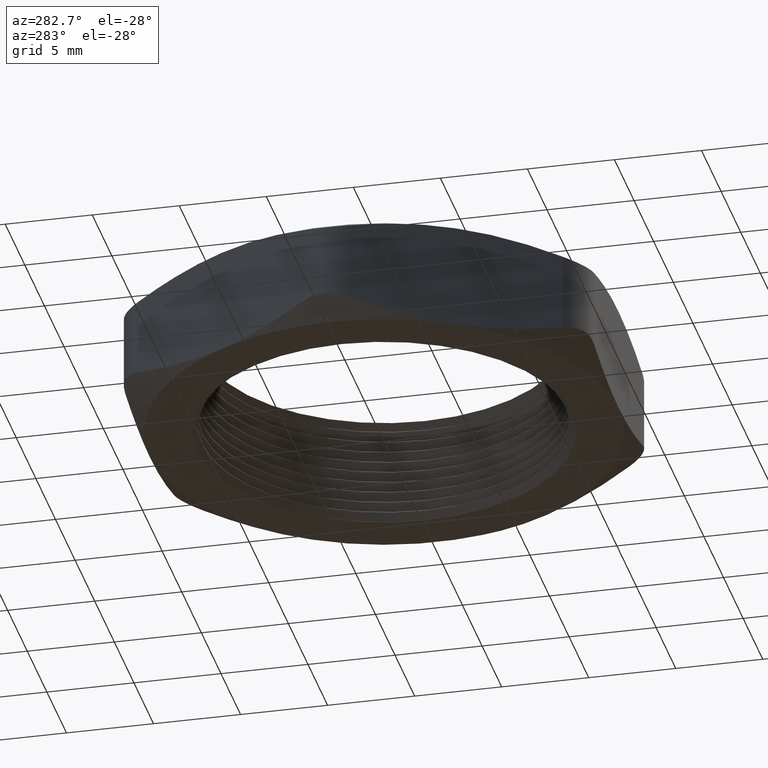
[diagram: clean part render]
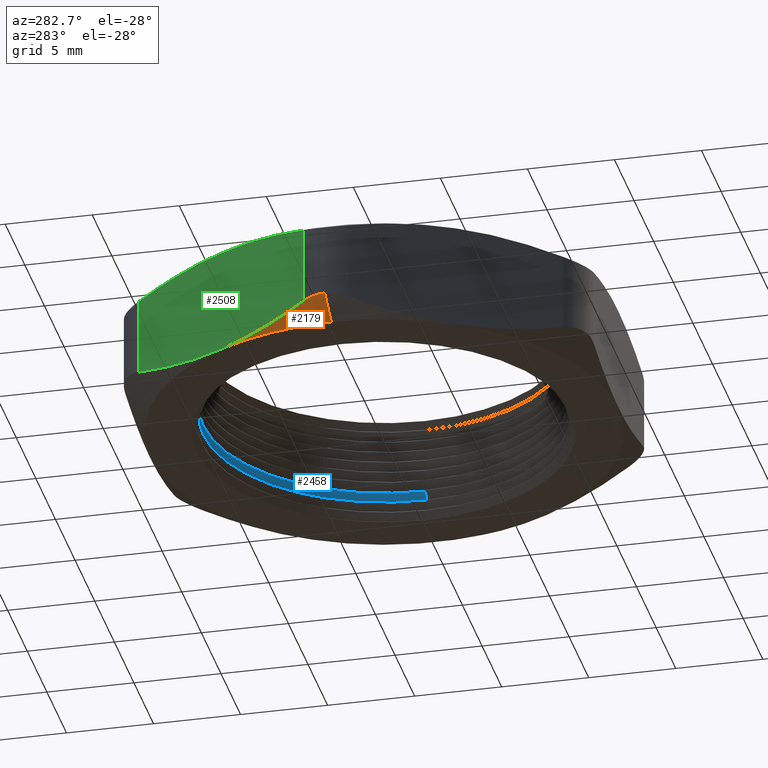
[diagram: same view with three faces highlighted in distinct colors, each labeled with its STEP entity id]
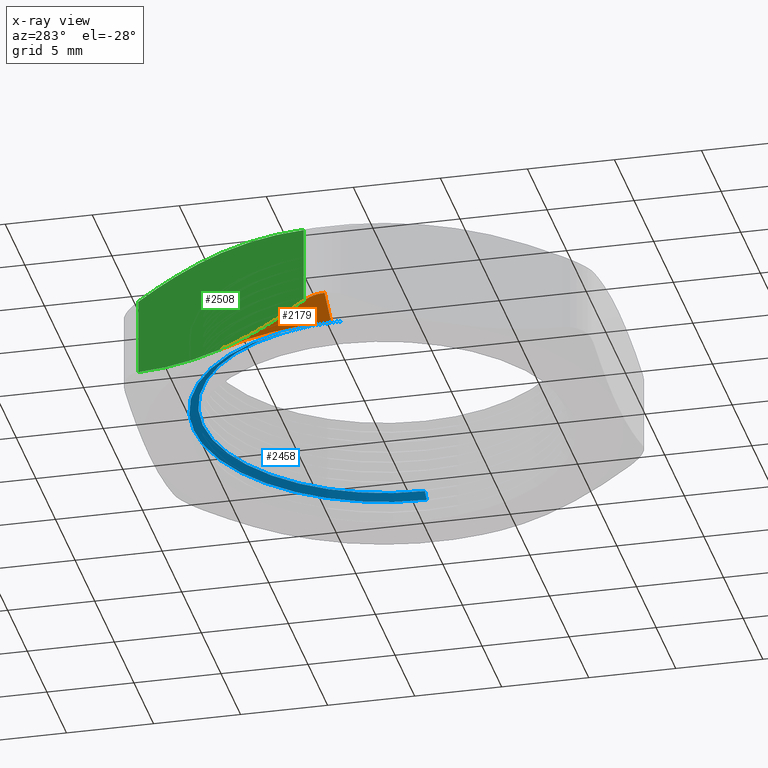
[diagram: x-ray of the same camera — body ghosted, the three highlighted faces saturated]
A machine part, auxiliary view with three faces highlighted in distinct colors.
The next image is the same camera in x-ray (body ghosted, the three faces saturated) — at least one of them is partly hidden behind the body in this view.
Their STEP definitions:

[orange] entity #2179 — the highlighted conical surface has half-angle 60 deg.
#16 = EDGE_CURVE ( 'NONE', #17, #18, #2376, .T. ) ;
#17 = VERTEX_POINT ( 'NONE', #2375 ) ;
#18 = VERTEX_POINT ( 'NONE', #2380 ) ;
#19 = VERTEX_POINT ( 'NONE', #2377 ) ;
#27 = VERTEX_POINT ( 'NONE', #296 ) ;
#296 = CARTESIAN_POINT ( 'NONE',  ( -0.5831237718815222000, 0.05000000000000003100, 0.03190638126214317300 ) ) ;
#1289 = DIRECTION ( 'NONE',  ( -1.000000000000000000, 0.0000000000000000000, 0.0000000000000000000 ) ) ;
#1290 = DIRECTION ( 'NONE',  ( 0.0000000000000000000, 0.0000000000000000000, 1.000000000000000000 ) ) ;
#1291 = CARTESIAN_POINT ( 'NONE',  ( 0.0000000000000000000, 0.0000000000000000000, 0.0000000000000000000 ) ) ;
#1292 = AXIS2_PLACEMENT_3D ( 'NONE', #1291, #1290, #1289 ) ;
#1293 = CONICAL_SURFACE ( 'NONE', #1292, 0.5300000000000002500, 1.047197551196600100 ) ;
#1296 = FACE_OUTER_BOUND ( 'NONE', #2182, .T. ) ;
#1335 = DIRECTION ( 'NONE',  ( -0.8660254037844397100, 0.0000000000000000000, 0.4999999999999979500 ) ) ;
#1336 = VECTOR ( 'NONE', #1335, 39.37007874015748900 ) ;
#1337 = CARTESIAN_POINT ( 'NONE',  ( -0.5300000000000002500, 0.0000000000000000000, 0.0000000000000000000 ) ) ;
#1338 = LINE ( 'NONE', #1337, #1336 ) ;
#1362 = CARTESIAN_POINT ( 'NONE',  ( -0.5831237718815222000, 0.05000000000000003100, 0.03190638126214317300 ) ) ;
#1363 = CARTESIAN_POINT ( 'NONE',  ( -0.5874339482388029100, 0.04253455555960868100, 0.03401753964666053000 ) ) ;
#1364 = CARTESIAN_POINT ( 'NONE',  ( -0.5908131712624055100, 0.03441686282104221300, 0.03565369559001656300 ) ) ;
#1365 = CARTESIAN_POINT ( 'NONE',  ( -0.5953360325567611500, 0.01763874833257972300, 0.03783774930936032600 ) ) ;
#1366 = CARTESIAN_POINT ( 'NONE',  ( -0.5965212315030782300, 0.008765464616512111000, 0.03840605091512740200 ) ) ;
#1367 = CARTESIAN_POINT ( 'NONE',  ( -0.5965212315030784500, -3.403670817143060400E-025, 0.03840605091512739500 ) ) ;
#1371 = B_SPLINE_CURVE_WITH_KNOTS ( 'NONE', 3,
 ( #1367, #1366, #1365, #1364, #1363, #1362 ),
 .UNSPECIFIED., .F., .F.,
 ( 4, 2, 4 ),
 ( 0.001338114895954698700, 0.002005113312624132500, 0.002672111729293566500 ),
 .UNSPECIFIED. ) ;
#1381 = CARTESIAN_POINT ( 'NONE',  ( -0.4589934640057526900, 0.2650000000000001800, 0.0000000000000000000 ) ) ;
#1382 = CARTESIAN_POINT ( 'NONE',  ( -0.4800637827398058200, 0.2285051374209496100, -3.461496847440801800E-016 ) ) ;
#1383 = CARTESIAN_POINT ( 'NONE',  ( -0.5009233622360697000, 0.1923752859088982400, 0.002934156563239794500 ) ) ;
#1384 = CARTESIAN_POINT ( 'NONE',  ( -0.5422754926343552600, 0.1207512950578549200, 0.01391266829341693800 ) ) ;
#1385 = CARTESIAN_POINT ( 'NONE',  ( -0.5627695032311009800, 0.08525462745343617700, 0.02193669989412413600 ) ) ;
#1386 = CARTESIAN_POINT ( 'NONE',  ( -0.5831237718815222000, 0.05000000000000003100, 0.03190638126214317300 ) ) ;
#1389 = B_SPLINE_CURVE_WITH_KNOTS ( 'NONE', 3,
 ( #1386, #1385, #1384, #1383, #1382, #1381 ),
 .UNSPECIFIED., .F., .F.,
 ( 4, 2, 4 ),
 ( 0.001507538927942149400, 0.004686030383342452300, 0.007864521838742756900 ),
 .UNSPECIFIED. ) ;
#2165 = ORIENTED_EDGE ( 'NONE', *, *, #2211, .T. ) ;
#2179 = ADVANCED_FACE ( 'NONE', ( #1296 ), #1293, .T. ) ;
#2181 = ORIENTED_EDGE ( 'NONE', *, *, #2183, .T. ) ;
#2182 = EDGE_LOOP ( 'NONE', ( #2188, #2181, #2190, #2165 ) ) ;
#2183 = EDGE_CURVE ( 'NONE', #18, #19, #1338, .T. ) ;
#2188 = ORIENTED_EDGE ( 'NONE', *, *, #16, .T. ) ;
#2189 = EDGE_CURVE ( 'NONE', #19, #27, #1371, .T. ) ;
#2190 = ORIENTED_EDGE ( 'NONE', *, *, #2189, .T. ) ;
#2211 = EDGE_CURVE ( 'NONE', #27, #17, #1389, .T. ) ;
#2375 = CARTESIAN_POINT ( 'NONE',  ( -0.4589934640057526900, 0.2650000000000001800, 0.0000000000000000000 ) ) ;
#2376 = CIRCLE ( 'NONE', #2379, 0.5300000000000002500 ) ;
#2377 = CARTESIAN_POINT ( 'NONE',  ( -0.5965212315030784500, -3.403670817143060400E-025, 0.03840605091512739500 ) ) ;
#2378 = CARTESIAN_POINT ( 'NONE',  ( 0.0000000000000000000, 0.0000000000000000000, 0.0000000000000000000 ) ) ;
#2379 = AXIS2_PLACEMENT_3D ( 'NONE', #2378, #2382, #2381 ) ;
#2380 = CARTESIAN_POINT ( 'NONE',  ( -0.5300000000000002500, 0.0000000000000000000, 0.0000000000000000000 ) ) ;
#2381 = DIRECTION ( 'NONE',  ( 1.000000000000000000, 0.0000000000000000000, 0.0000000000000000000 ) ) ;
#2382 = DIRECTION ( 'NONE',  ( 0.0000000000000000000, 0.0000000000000000000, 1.000000000000000000 ) ) ;

[blue] entity #2458 — the highlighted conical surface has half-angle 60 deg.
#208 = EDGE_CURVE ( 'NONE', #579, #576, #674, .T. ) ;
#217 = ORIENTED_EDGE ( 'NONE', *, *, #208, .F. ) ;
#218 = ORIENTED_EDGE ( 'NONE', *, *, #1613, .T. ) ;
#261 = EDGE_LOOP ( 'NONE', ( #2454, #2457, #218, #217 ) ) ;
#576 = VERTEX_POINT ( 'NONE', #930 ) ;
#579 = VERTEX_POINT ( 'NONE', #924 ) ;
#596 = VERTEX_POINT ( 'NONE', #954 ) ;
#671 = DIRECTION ( 'NONE',  ( 1.000000000000000000, 0.0000000000000000000, 0.0000000000000000000 ) ) ;
#672 = DIRECTION ( 'NONE',  ( 0.0000000000000000000, 0.0000000000000000000, 1.000000000000000000 ) ) ;
#673 = AXIS2_PLACEMENT_3D ( 'NONE', #678, #672, #671 ) ;
#674 = CIRCLE ( 'NONE', #673, 0.4299999999999999900 ) ;
#678 = CARTESIAN_POINT ( 'NONE',  ( 0.0000000000000000000, 0.0000000000000000000, 0.05345299461620774100 ) ) ;
#924 = CARTESIAN_POINT ( 'NONE',  ( 0.4299999999999999900, 5.265981236333618200E-017, 0.05345299461620774100 ) ) ;
#930 = CARTESIAN_POINT ( 'NONE',  ( -0.4299999999999999900, 0.0000000000000000000, 0.05345299461620774100 ) ) ;
#954 = CARTESIAN_POINT ( 'NONE',  ( -0.4099999999999999800, 0.0000000000000000000, 0.06499999999999998800 ) ) ;
#1043 = DIRECTION ( 'NONE',  ( -0.8660254037844434800, 0.0000000000000000000, -0.4999999999999913400 ) ) ;
#1044 = VECTOR ( 'NONE', #1043, 39.37007874015748900 ) ;
#1045 = CARTESIAN_POINT ( 'NONE',  ( -0.4299999999999999900, 0.0000000000000000000, 0.05345299461620774100 ) ) ;
#1046 = LINE ( 'NONE', #1045, #1044 ) ;
#1094 = CARTESIAN_POINT ( 'NONE',  ( 0.4099999999999999800, 5.021051876504146900E-017, 0.06499999999999998800 ) ) ;
#1177 = DIRECTION ( 'NONE',  ( 0.8660254037844434800, 1.060575238724912700E-016, -0.4999999999999913400 ) ) ;
#1178 = VECTOR ( 'NONE', #1177, 39.37007874015748900 ) ;
#1179 = CARTESIAN_POINT ( 'NONE',  ( 0.4299999999999999900, 5.265981236333618200E-017, 0.05345299461620774100 ) ) ;
#1180 = LINE ( 'NONE', #1179, #1178 ) ;
#1459 = DIRECTION ( 'NONE',  ( 1.000000000000000000, 0.0000000000000000000, 0.0000000000000000000 ) ) ;
#1460 = DIRECTION ( 'NONE',  ( 0.0000000000000000000, 0.0000000000000000000, 1.000000000000000000 ) ) ;
#1461 = AXIS2_PLACEMENT_3D ( 'NONE', #1467, #1460, #1459 ) ;
#1462 = CIRCLE ( 'NONE', #1461, 0.4099999999999999800 ) ;
#1467 = CARTESIAN_POINT ( 'NONE',  ( 0.0000000000000000000, 0.0000000000000000000, 0.06499999999999998800 ) ) ;
#1613 = EDGE_CURVE ( 'NONE', #596, #576, #1046, .T. ) ;
#1616 = VERTEX_POINT ( 'NONE', #1094 ) ;
#1776 = CONICAL_SURFACE ( 'NONE', #1777, 0.4299999999999999900, 1.047197551196607600 ) ;
#1777 = AXIS2_PLACEMENT_3D ( 'NONE', #1783, #1838, #1837 ) ;
#1778 = FACE_OUTER_BOUND ( 'NONE', #261, .T. ) ;
#1783 = CARTESIAN_POINT ( 'NONE',  ( 0.0000000000000000000, 0.0000000000000000000, 0.05345299461620774100 ) ) ;
#1837 = DIRECTION ( 'NONE',  ( -1.000000000000000000, 0.0000000000000000000, 0.0000000000000000000 ) ) ;
#1838 = DIRECTION ( 'NONE',  ( 0.0000000000000000000, 0.0000000000000000000, -1.000000000000000000 ) ) ;
#2107 = EDGE_CURVE ( 'NONE', #1616, #579, #1180, .T. ) ;
#2262 = EDGE_CURVE ( 'NONE', #1616, #596, #1462, .T. ) ;
#2454 = ORIENTED_EDGE ( 'NONE', *, *, #2107, .F. ) ;
#2457 = ORIENTED_EDGE ( 'NONE', *, *, #2262, .T. ) ;
#2458 = ADVANCED_FACE ( 'NONE', ( #1778 ), #1776, .F. ) ;

[green] entity #2508 — the highlighted planar face has unit normal (0.866, -0.5, 0).
#17 = VERTEX_POINT ( 'NONE', #2375 ) ;
#27 = VERTEX_POINT ( 'NONE', #296 ) ;
#296 = CARTESIAN_POINT ( 'NONE',  ( -0.5831237718815222000, 0.05000000000000003100, 0.03190638126214317300 ) ) ;
#1381 = CARTESIAN_POINT ( 'NONE',  ( -0.4589934640057526900, 0.2650000000000001800, 0.0000000000000000000 ) ) ;
#1382 = CARTESIAN_POINT ( 'NONE',  ( -0.4800637827398058200, 0.2285051374209496100, -3.461496847440801800E-016 ) ) ;
#1383 = CARTESIAN_POINT ( 'NONE',  ( -0.5009233622360697000, 0.1923752859088982400, 0.002934156563239794500 ) ) ;
#1384 = CARTESIAN_POINT ( 'NONE',  ( -0.5422754926343552600, 0.1207512950578549200, 0.01391266829341693800 ) ) ;
#1385 = CARTESIAN_POINT ( 'NONE',  ( -0.5627695032311009800, 0.08525462745343617700, 0.02193669989412413600 ) ) ;
#1386 = CARTESIAN_POINT ( 'NONE',  ( -0.5831237718815222000, 0.05000000000000003100, 0.03190638126214317300 ) ) ;
#1389 = B_SPLINE_CURVE_WITH_KNOTS ( 'NONE', 3,
 ( #1386, #1385, #1384, #1383, #1382, #1381 ),
 .UNSPECIFIED., .F., .F.,
 ( 4, 2, 4 ),
 ( 0.001507538927942149400, 0.004686030383342452300, 0.007864521838742756900 ),
 .UNSPECIFIED. ) ;
#1491 = CARTESIAN_POINT ( 'NONE',  ( -0.3552174247804042500, 0.4447453725465638800, 0.2180633001058758800 ) ) ;
#1492 = CARTESIAN_POINT ( 'NONE',  ( -0.3348631561299830800, 0.4800000000000001500, 0.2080936187378568900 ) ) ;
#1493 = B_SPLINE_CURVE_WITH_KNOTS ( 'NONE', 3,
 ( #1492, #1491, #1543, #1542, #1541, #1540 ),
 .UNSPECIFIED., .F., .F.,
 ( 4, 2, 4 ),
 ( 0.001507538927942152900, 0.004686030383342454900, 0.007864521838742756900 ),
 .UNSPECIFIED. ) ;
#1499 = CARTESIAN_POINT ( 'NONE',  ( -0.3348631561299830800, 0.4800000000000001500, 0.2080936187378568900 ) ) ;
#1506 = CARTESIAN_POINT ( 'NONE',  ( -0.4589934640057526900, 0.2650000000000001800, 0.2399999999999999900 ) ) ;
#1518 = CARTESIAN_POINT ( 'NONE',  ( -0.5831237718815222000, 0.05000000000000007200, 0.2080936187378568700 ) ) ;
#1519 = CARTESIAN_POINT ( 'NONE',  ( -0.5628122693413818400, 0.08518055437758768900, 0.2180423529276612500 ) ) ;
#1520 = CARTESIAN_POINT ( 'NONE',  ( -0.5423412265098266300, 0.1206374406457597200, 0.2260647668561306900 ) ) ;
#1521 = CARTESIAN_POINT ( 'NONE',  ( -0.5113207380161620700, 0.1743665027923926000, 0.2343080058279306800 ) ) ;
#1522 = CARTESIAN_POINT ( 'NONE',  ( -0.5009282709238906900, 0.1923667838121941900, 0.2364242204120069500 ) ) ;
#1523 = CARTESIAN_POINT ( 'NONE',  ( -0.4800286126102081800, 0.2285660538723212900, 0.2392714483092689700 ) ) ;
#1524 = CARTESIAN_POINT ( 'NONE',  ( -0.4694840780328565800, 0.2468297235024610500, 0.2400000000000003500 ) ) ;
#1525 = CARTESIAN_POINT ( 'NONE',  ( -0.4589934640057526900, 0.2650000000000001800, 0.2399999999999999900 ) ) ;
#1538 = B_SPLINE_CURVE_WITH_KNOTS ( 'NONE', 3,
 ( #1525, #1524, #1523, #1522, #1521, #1520, #1519, #1518 ),
 .UNSPECIFIED., .F., .F.,
 ( 4, 2, 2, 4 ),
 ( 0.007864521838742756900, 0.009447047830300871500, 0.01102957382185898600, 0.01419462580497521000 ),
 .UNSPECIFIED. ) ;
#1540 = CARTESIAN_POINT ( 'NONE',  ( -0.4589934640057526900, 0.2650000000000001800, 0.2399999999999999900 ) ) ;
#1541 = CARTESIAN_POINT ( 'NONE',  ( -0.4379231452716994500, 0.3014948625790505600, 0.2400000000000003800 ) ) ;
#1542 = CARTESIAN_POINT ( 'NONE',  ( -0.4170635657754354600, 0.3376247140911017300, 0.2370658434367601800 ) ) ;
#1543 = CARTESIAN_POINT ( 'NONE',  ( -0.3757114353771502400, 0.4092487049421453200, 0.2260873317065831600 ) ) ;
#1562 = CARTESIAN_POINT ( 'NONE',  ( -0.5831237718815222000, 0.05000000000000007200, 0.2080936187378568700 ) ) ;
#1563 = DIRECTION ( 'NONE',  ( 0.0000000000000000000, 0.0000000000000000000, 1.000000000000000000 ) ) ;
#1564 = VECTOR ( 'NONE', #1563, 39.37007874015748100 ) ;
#1565 = CARTESIAN_POINT ( 'NONE',  ( -0.5831237718815222000, 0.05000000000000001000, 0.2399999999999999900 ) ) ;
#1566 = LINE ( 'NONE', #1565, #1564 ) ;
#1952 = DIRECTION ( 'NONE',  ( 0.5000000000000001100, 0.8660254037844386000, 0.0000000000000000000 ) ) ;
#1953 = DIRECTION ( 'NONE',  ( 0.8660254037844386000, -0.5000000000000001100, 0.0000000000000000000 ) ) ;
#1954 = CARTESIAN_POINT ( 'NONE',  ( -0.3059956426705017200, 0.5300000000000001400, 0.2399999999999999900 ) ) ;
#1955 = AXIS2_PLACEMENT_3D ( 'NONE', #1954, #1953, #1952 ) ;
#1956 = PLANE ( 'NONE',  #1955 ) ;
#1957 = FACE_OUTER_BOUND ( 'NONE', #2502, .T. ) ;
#1973 = DIRECTION ( 'NONE',  ( 0.0000000000000000000, 0.0000000000000000000, -1.000000000000000000 ) ) ;
#1974 = VECTOR ( 'NONE', #1973, 39.37007874015748100 ) ;
#1975 = CARTESIAN_POINT ( 'NONE',  ( -0.3348631561299830800, 0.4800000000000001500, 0.2399999999999999900 ) ) ;
#1976 = CARTESIAN_POINT ( 'NONE',  ( -0.3348631561299830800, 0.4800000000000000900, 0.03190638126214309600 ) ) ;
#1977 = CARTESIAN_POINT ( 'NONE',  ( -0.3551746586701236600, 0.4448194456224124300, 0.02195764707233873300 ) ) ;
#1978 = CARTESIAN_POINT ( 'NONE',  ( -0.3756457015016787500, 0.4093625593542402600, 0.01393523314386925700 ) ) ;
#1979 = CARTESIAN_POINT ( 'NONE',  ( -0.4066661899953433700, 0.3556334972076074500, 0.005691994172069233600 ) ) ;
#1980 = CARTESIAN_POINT ( 'NONE',  ( -0.4170586570876144200, 0.3376332161878059500, 0.003575779587992943200 ) ) ;
#1981 = CARTESIAN_POINT ( 'NONE',  ( -0.4379583154012969300, 0.3014339461276789300, 0.0007285516907309597600 ) ) ;
#1982 = CARTESIAN_POINT ( 'NONE',  ( -0.4485028499786486400, 0.2831702764975390100, -3.565541839386998500E-016 ) ) ;
#1983 = CARTESIAN_POINT ( 'NONE',  ( -0.4589934640057526900, 0.2650000000000001800, 0.0000000000000000000 ) ) ;
#1984 = CARTESIAN_POINT ( 'NONE',  ( -0.3348631561299830800, 0.4800000000000000900, 0.03190638126214309600 ) ) ;
#1985 = B_SPLINE_CURVE_WITH_KNOTS ( 'NONE', 3,
 ( #1983, #1982, #1981, #1980, #1979, #1978, #1977, #1976 ),
 .UNSPECIFIED., .F., .F.,
 ( 4, 2, 2, 4 ),
 ( 0.007864521838742756900, 0.009447047830300868100, 0.01102957382185897800, 0.01419462580497520000 ),
 .UNSPECIFIED. ) ;
#1986 = LINE ( 'NONE', #1975, #1974 ) ;
#2211 = EDGE_CURVE ( 'NONE', #27, #17, #1389, .T. ) ;
#2271 = VERTEX_POINT ( 'NONE', #1506 ) ;
#2276 = VERTEX_POINT ( 'NONE', #1499 ) ;
#2278 = EDGE_CURVE ( 'NONE', #2276, #2271, #1493, .T. ) ;
#2279 = ORIENTED_EDGE ( 'NONE', *, *, #2278, .F. ) ;
#2285 = EDGE_CURVE ( 'NONE', #2271, #2296, #1538, .T. ) ;
#2294 = EDGE_CURVE ( 'NONE', #27, #2296, #1566, .T. ) ;
#2296 = VERTEX_POINT ( 'NONE', #1562 ) ;
#2309 = ORIENTED_EDGE ( 'NONE', *, *, #2285, .F. ) ;
#2375 = CARTESIAN_POINT ( 'NONE',  ( -0.4589934640057526900, 0.2650000000000001800, 0.0000000000000000000 ) ) ;
#2502 = EDGE_LOOP ( 'NONE', ( #2505, #2507, #2309, #2279, #2526, #2523 ) ) ;
#2505 = ORIENTED_EDGE ( 'NONE', *, *, #2211, .F. ) ;
#2507 = ORIENTED_EDGE ( 'NONE', *, *, #2294, .T. ) ;
#2508 = ADVANCED_FACE ( 'NONE', ( #1957 ), #1956, .F. ) ;
#2522 = EDGE_CURVE ( 'NONE', #17, #2524, #1985, .T. ) ;
#2523 = ORIENTED_EDGE ( 'NONE', *, *, #2522, .F. ) ;
#2524 = VERTEX_POINT ( 'NONE', #1984 ) ;
#2525 = EDGE_CURVE ( 'NONE', #2276, #2524, #1986, .T. ) ;
#2526 = ORIENTED_EDGE ( 'NONE', *, *, #2525, .T. ) ;